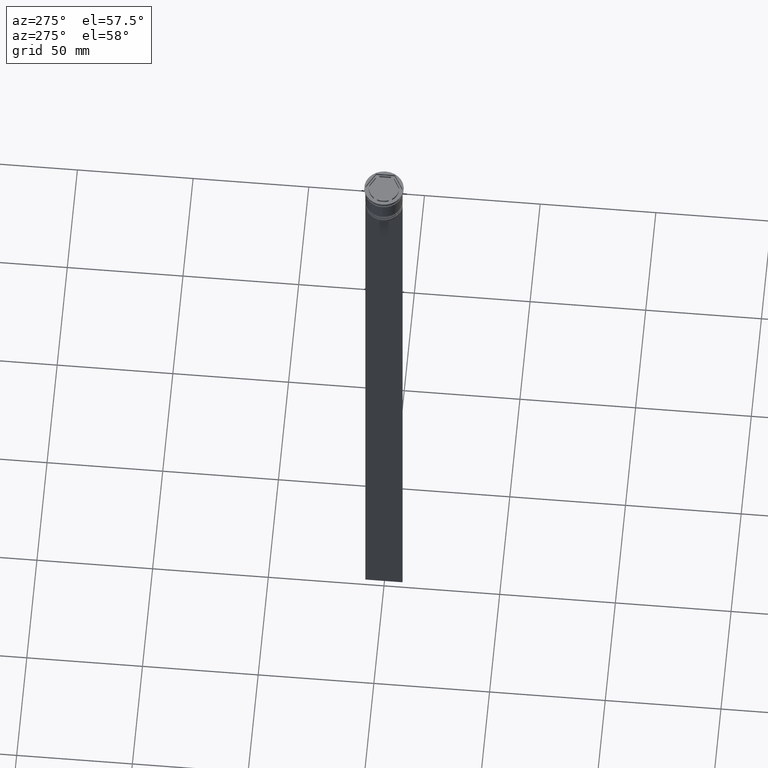
[diagram: clean part render]
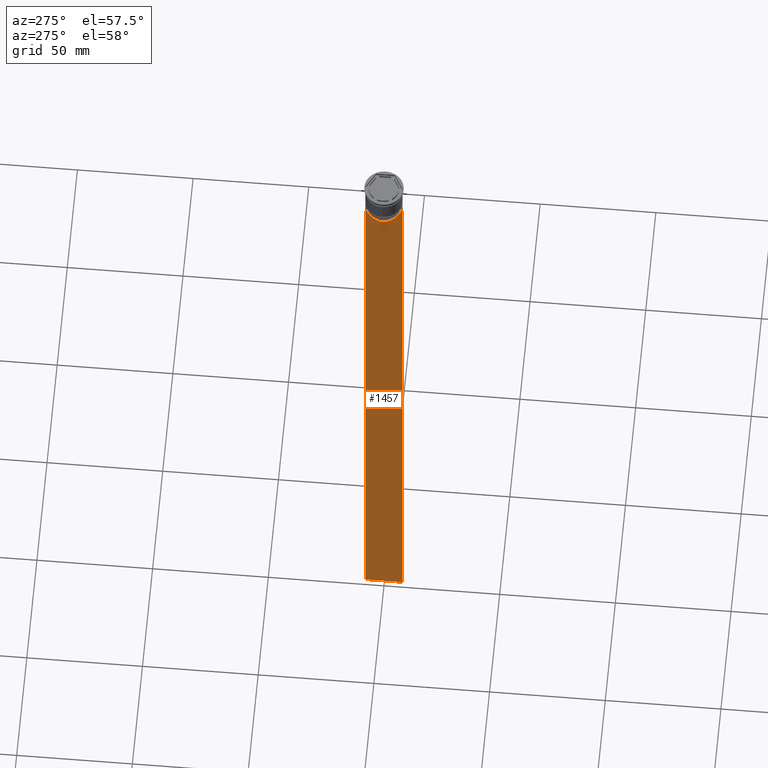
[diagram: same view with one face highlighted and labeled with its STEP entity id]
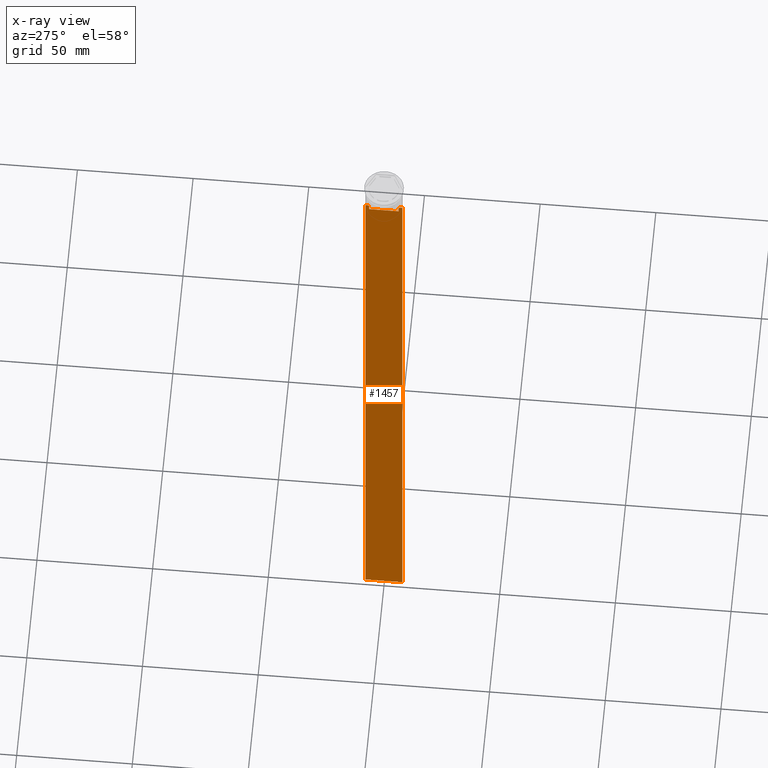
[diagram: x-ray of the same camera — body ghosted, the highlighted face saturated]
A machine part, auxiliary view. The second image highlights one B-rep face of the part: STEP entity #1457.
The next image is the same camera in x-ray: the body ghosted, the highlighted face saturated — about 0% of this face is hidden behind the body in this view.
In plain terms, the highlighted planar face has unit normal (-1, 0, 0).
Its self-contained STEP definition (entity closure, byte-faithful):
#4 = LINE ( 'NONE', #1331, #2111 ) ;
#50 = DIRECTION ( 'NONE',  ( 0.000000000000000000, 0.000000000000000000, -1.000000000000000000 ) ) ;
#70 = VERTEX_POINT ( 'NONE', #1726 ) ;
#88 = EDGE_CURVE ( 'NONE', #791, #1231, #4, .T. ) ;
#97 = FACE_OUTER_BOUND ( 'NONE', #983, .T. ) ;
#122 = ORIENTED_EDGE ( 'NONE', *, *, #2187, .F. ) ;
#144 = CARTESIAN_POINT ( 'NONE',  ( -0.4999999999999998890, 6.380438856379708312, -14.50000000000000000 ) ) ;
#168 = VERTEX_POINT ( 'NONE', #2192 ) ;
#182 = ORIENTED_EDGE ( 'NONE', *, *, #786, .T. ) ;
#205 = DIRECTION ( 'NONE',  ( 0.000000000000000000, -1.000000000000000000, 0.000000000000000000 ) ) ;
#222 = CARTESIAN_POINT ( 'NONE',  ( -0.4999999999999998890, 7.999999999999996447, -314.0000000000000000 ) ) ;
#254 = CARTESIAN_POINT ( 'NONE',  ( -0.4999999999999998890, -8.000000000000003553, 2.031219541881394530 ) ) ;
#330 = CARTESIAN_POINT ( 'NONE',  ( -0.4999999999999998890, -8.000000000000003553, -14.00000000000000178 ) ) ;
#407 = CARTESIAN_POINT ( 'NONE',  ( -0.4999999999999998890, 7.999999999999996447, 2.031219541881394530 ) ) ;
#486 = ORIENTED_EDGE ( 'NONE', *, *, #1976, .F. ) ;
#513 = VERTEX_POINT ( 'NONE', #869 ) ;
#553 = CARTESIAN_POINT ( 'NONE',  ( -0.4999999999999998890, -6.714736947305992132, -14.16668390685738999 ) ) ;
#554 = VECTOR ( 'NONE', #644, 1000.000000000000000 ) ;
#603 = DIRECTION ( 'NONE',  ( 0.000000000000000000, 1.000000000000000000, 0.000000000000000000 ) ) ;
#641 = VECTOR ( 'NONE', #1645, 1000.000000000000000 ) ;
#644 = DIRECTION ( 'NONE',  ( 0.000000000000000000, -1.000000000000000000, 0.000000000000000000 ) ) ;
#671 = DIRECTION ( 'NONE',  ( 0.000000000000000000, -1.000000000000000000, 0.000000000000000000 ) ) ;
#704 = ORIENTED_EDGE ( 'NONE', *, *, #729, .F. ) ;
#716 = VECTOR ( 'NONE', #50, 1000.000000000000000 ) ;
#729 = EDGE_CURVE ( 'NONE', #820, #758, #1106, .T. ) ;
#746 = CARTESIAN_POINT ( 'NONE',  ( -0.4999999999999998890, 6.714736947114692711, -14.16668390704818847 ) ) ;
#758 = VERTEX_POINT ( 'NONE', #1681 ) ;
#786 = EDGE_CURVE ( 'NONE', #2460, #1231, #1200, .T. ) ;
#791 = VERTEX_POINT ( 'NONE', #1959 ) ;
#817 = ORIENTED_EDGE ( 'NONE', *, *, #1710, .F. ) ;
#820 = VERTEX_POINT ( 'NONE', #1347 ) ;
#869 = CARTESIAN_POINT ( 'NONE',  ( -0.4999999999999998890, -7.884161337770806632, -14.00000000000000178 ) ) ;
#907 = CARTESIAN_POINT ( 'NONE',  ( -0.4999999999999998890, 6.547597841304911626, -14.33335192459222718 ) ) ;
#922 = AXIS2_PLACEMENT_3D ( 'NONE', #254, #1249, #1021 ) ;
#948 = CARTESIAN_POINT ( 'NONE',  ( -0.4999999999999998890, -6.380438856379708312, 0.000000000000000000 ) ) ;
#983 = EDGE_LOOP ( 'NONE', ( #2403, #817, #1290, #182, #1686, #1763, #2303, #1510, #2459, #704, #486, #122 ) ) ;
#991 = VERTEX_POINT ( 'NONE', #1643 ) ;
#999 = VECTOR ( 'NONE', #205, 1000.000000000000000 ) ;
#1021 = DIRECTION ( 'NONE',  ( 0.000000000000000000, 0.000000000000000000, 1.000000000000000000 ) ) ;
#1043 = VECTOR ( 'NONE', #2064, 1000.000000000000000 ) ;
#1050 = LINE ( 'NONE', #1616, #1401 ) ;
#1106 = LINE ( 'NONE', #948, #1586 ) ;
#1117 = CARTESIAN_POINT ( 'NONE',  ( -0.4999999999999998890, -6.380438856379708312, -14.50000000000000000 ) ) ;
#1134 = EDGE_CURVE ( 'NONE', #991, #791, #2455, .T. ) ;
#1167 = LINE ( 'NONE', #2320, #999 ) ;
#1200 = LINE ( 'NONE', #407, #716 ) ;
#1209 = PLANE ( 'NONE',  #922 ) ;
#1231 = VERTEX_POINT ( 'NONE', #222 ) ;
#1249 = DIRECTION ( 'NONE',  ( -1.000000000000000000, 0.000000000000000000, 0.000000000000000000 ) ) ;
#1256 = LINE ( 'NONE', #2376, #554 ) ;
#1290 = ORIENTED_EDGE ( 'NONE', *, *, #1483, .F. ) ;
#1315 = B_SPLINE_CURVE_WITH_KNOTS ( 'NONE', 3,
 ( #1853, #746, #907, #2062 ),
 .UNSPECIFIED., .F., .F.,
 ( 4, 4 ),
 ( 0.01172465562756038263, 0.01243276816391822651 ),
 .UNSPECIFIED. ) ;
#1321 = CARTESIAN_POINT ( 'NONE',  ( -0.4999999999999998890, -6.881860213634098500, -14.00000000000000178 ) ) ;
#1324 = CARTESIAN_POINT ( 'NONE',  ( -0.4999999999999998890, -8.000000000000003553, 2.031219541881394530 ) ) ;
#1331 = CARTESIAN_POINT ( 'NONE',  ( -0.4999999999999998890, -8.000000000000003553, -314.0000000000000000 ) ) ;
#1347 = CARTESIAN_POINT ( 'NONE',  ( -0.4999999999999998890, -6.380438856379708312, -17.00000000000000000 ) ) ;
#1401 = VECTOR ( 'NONE', #671, 1000.000000000000000 ) ;
#1441 = VECTOR ( 'NONE', #2089, 1000.000000000000000 ) ;
#1457 = ADVANCED_FACE ( 'NONE', ( #97 ), #1209, .T. ) ;
#1483 = EDGE_CURVE ( 'NONE', #2460, #2395, #1050, .T. ) ;
#1497 = B_SPLINE_CURVE_WITH_KNOTS ( 'NONE', 3,
 ( #1117, #2464, #553, #1321 ),
 .UNSPECIFIED., .F., .F.,
 ( 4, 4 ),
 ( 0.02996184199614749730, 0.03067452609193703841 ),
 .UNSPECIFIED. ) ;
#1510 = ORIENTED_EDGE ( 'NONE', *, *, #2007, .F. ) ;
#1535 = LINE ( 'NONE', #1724, #1441 ) ;
#1586 = VECTOR ( 'NONE', #1704, 1000.000000000000000 ) ;
#1616 = CARTESIAN_POINT ( 'NONE',  ( -0.4999999999999998890, -8.000000000000003553, -14.00000000000000178 ) ) ;
#1643 = CARTESIAN_POINT ( 'NONE',  ( -0.4999999999999998890, -8.000000000000003553, -14.00000000000000178 ) ) ;
#1645 = DIRECTION ( 'NONE',  ( 0.000000000000000000, 0.000000000000000000, -1.000000000000000000 ) ) ;
#1681 = CARTESIAN_POINT ( 'NONE',  ( -0.4999999999999998890, -6.380438856379708312, -14.50000000000000000 ) ) ;
#1686 = ORIENTED_EDGE ( 'NONE', *, *, #88, .F. ) ;
#1704 = DIRECTION ( 'NONE',  ( -0.000000000000000000, -0.000000000000000000, 1.000000000000000000 ) ) ;
#1710 = EDGE_CURVE ( 'NONE', #2395, #168, #1256, .T. ) ;
#1724 = CARTESIAN_POINT ( 'NONE',  ( -0.4999999999999998890, 6.399999999999999467, -17.00000000000000000 ) ) ;
#1726 = CARTESIAN_POINT ( 'NONE',  ( -0.4999999999999998890, 6.380438856379708312, -17.00000000000000000 ) ) ;
#1763 = ORIENTED_EDGE ( 'NONE', *, *, #1134, .F. ) ;
#1820 = EDGE_CURVE ( 'NONE', #168, #2420, #1315, .T. ) ;
#1853 = CARTESIAN_POINT ( 'NONE',  ( -0.4999999999999998890, 6.881860213634098500, -14.00000000000000178 ) ) ;
#1959 = CARTESIAN_POINT ( 'NONE',  ( -0.4999999999999998890, -8.000000000000003553, -314.0000000000000000 ) ) ;
#1976 = EDGE_CURVE ( 'NONE', #70, #820, #1535, .T. ) ;
#1980 = VERTEX_POINT ( 'NONE', #2127 ) ;
#2007 = EDGE_CURVE ( 'NONE', #1980, #513, #1167, .T. ) ;
#2044 = CARTESIAN_POINT ( 'NONE',  ( -0.4999999999999998890, 7.999999999999996447, -14.00000000000000178 ) ) ;
#2062 = CARTESIAN_POINT ( 'NONE',  ( -0.4999999999999998890, 6.380438856379708312, -14.50000000000000000 ) ) ;
#2064 = DIRECTION ( 'NONE',  ( 0.000000000000000000, -1.000000000000000000, 0.000000000000000000 ) ) ;
#2089 = DIRECTION ( 'NONE',  ( 0.000000000000000000, -1.000000000000000000, 0.000000000000000000 ) ) ;
#2111 = VECTOR ( 'NONE', #603, 1000.000000000000000 ) ;
#2127 = CARTESIAN_POINT ( 'NONE',  ( -0.4999999999999998890, -6.881860213634098500, -14.00000000000000178 ) ) ;
#2150 = VECTOR ( 'NONE', #2465, 1000.000000000000000 ) ;
#2187 = EDGE_CURVE ( 'NONE', #2420, #70, #2224, .T. ) ;
#2192 = CARTESIAN_POINT ( 'NONE',  ( -0.4999999999999998890, 6.881860213634098500, -14.00000000000000178 ) ) ;
#2224 = LINE ( 'NONE', #2419, #641 ) ;
#2287 = LINE ( 'NONE', #330, #1043 ) ;
#2303 = ORIENTED_EDGE ( 'NONE', *, *, #2425, .F. ) ;
#2320 = CARTESIAN_POINT ( 'NONE',  ( -0.4999999999999998890, -8.000000000000003553, -14.00000000000000178 ) ) ;
#2376 = CARTESIAN_POINT ( 'NONE',  ( -0.4999999999999998890, -8.000000000000003553, -14.00000000000000178 ) ) ;
#2395 = VERTEX_POINT ( 'NONE', #2476 ) ;
#2403 = ORIENTED_EDGE ( 'NONE', *, *, #1820, .F. ) ;
#2419 = CARTESIAN_POINT ( 'NONE',  ( -0.4999999999999998890, 6.380438856379708312, 0.000000000000000000 ) ) ;
#2420 = VERTEX_POINT ( 'NONE', #144 ) ;
#2425 = EDGE_CURVE ( 'NONE', #513, #991, #2287, .T. ) ;
#2442 = EDGE_CURVE ( 'NONE', #758, #1980, #1497, .T. ) ;
#2455 = LINE ( 'NONE', #1324, #2150 ) ;
#2459 = ORIENTED_EDGE ( 'NONE', *, *, #2442, .F. ) ;
#2460 = VERTEX_POINT ( 'NONE', #2044 ) ;
#2464 = CARTESIAN_POINT ( 'NONE',  ( -0.4999999999999998890, -6.547597841511246131, -14.33335192438652328 ) ) ;
#2465 = DIRECTION ( 'NONE',  ( 0.000000000000000000, 0.000000000000000000, -1.000000000000000000 ) ) ;
#2476 = CARTESIAN_POINT ( 'NONE',  ( -0.4999999999999998890, 7.884161337770806632, -14.00000000000000178 ) ) ;